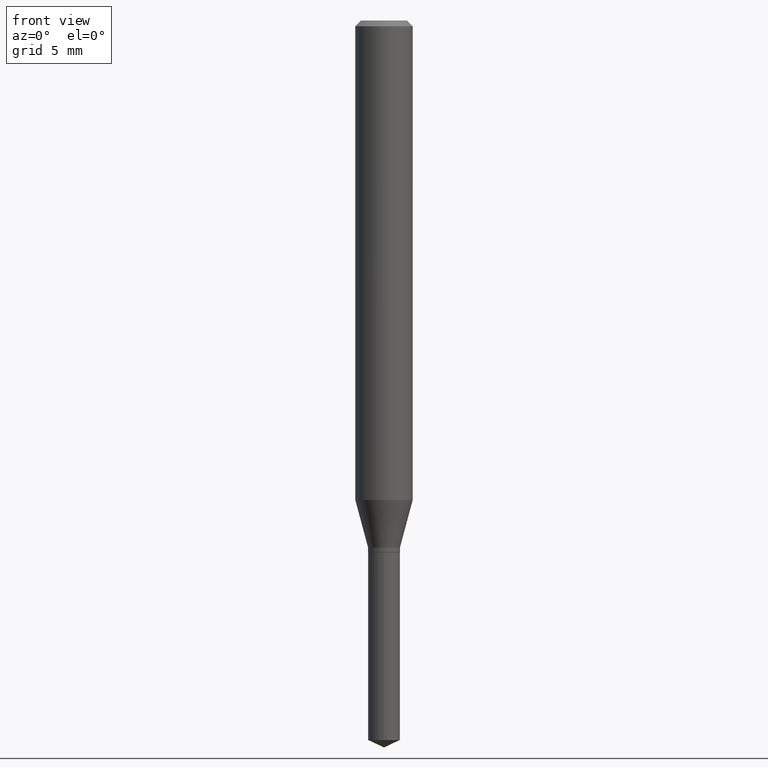
[diagram: clean part render]
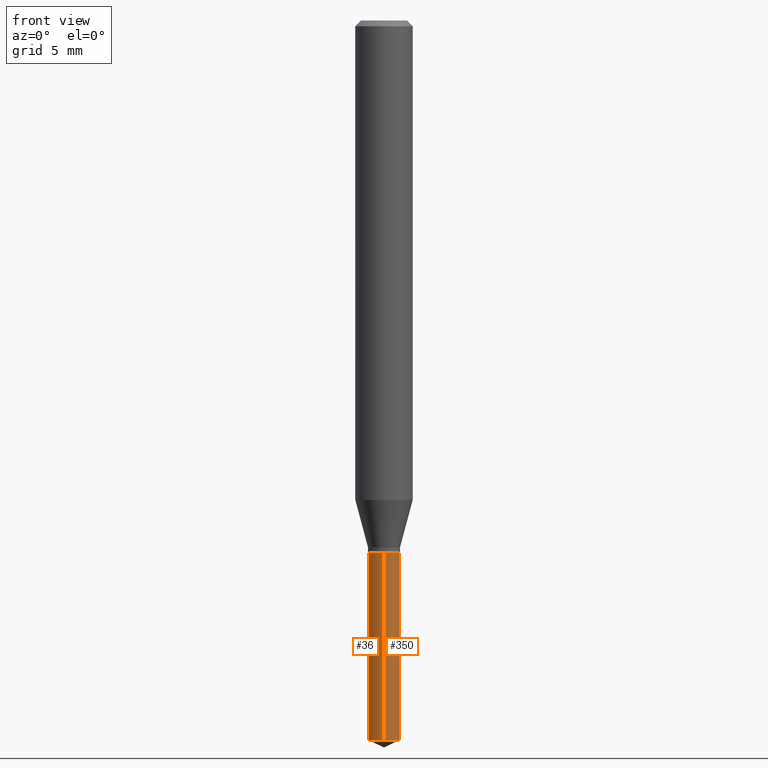
[diagram: same view with one multi-face feature highlighted, each face labeled with its STEP entity id]
A machine part, front view. The highlighted faces form ONE feature: a constant-radius fillet chain: 2 tangent blend faces with common blend radius 0.8344 mm. The faces share edges in the B-rep.
Their STEP definitions:
[1] entity #350 (Cylinder):
#8 = DIRECTION ( 'NONE',  ( -2.445470214571802396E-29, 3.491479321953280158E-15, 1.000000000000000000 ) ) ;
#22 = VERTEX_POINT ( 'NONE', #410 ) ;
#25 = EDGE_CURVE ( 'NONE', #66, #22, #411, .T. ) ;
#37 = ORIENTED_EDGE ( 'NONE', *, *, #444, .F. ) ;
#38 = CARTESIAN_POINT ( 'NONE',  ( 2.334132886972290313E-16, 0.03284999999999482084, -1.480781793429608140 ) ) ;
#52 = FACE_OUTER_BOUND ( 'NONE', #285, .T. ) ;
#57 = LINE ( 'NONE', #391, #339 ) ;
#66 = VERTEX_POINT ( 'NONE', #38 ) ;
#75 = VECTOR ( 'NONE', #490, 39.37007874015748143 ) ;
#95 = ORIENTED_EDGE ( 'NONE', *, *, #252, .F. ) ;
#100 = ORIENTED_EDGE ( 'NONE', *, *, #25, .T. ) ;
#119 = DIRECTION ( 'NONE',  ( -6.982962677686266711E-15, -1.000000000000000000, 0.000000000000000000 ) ) ;
#128 = CARTESIAN_POINT ( 'NONE',  ( -2.293903239619575644E-16, -0.03285000000000516673, -1.480781793429608140 ) ) ;
#133 = AXIS2_PLACEMENT_3D ( 'NONE', #439, #474, #119 ) ;
#141 = DIRECTION ( 'NONE',  ( -6.982962677686266711E-15, -1.000000000000000000, 4.158063917297204420E-15 ) ) ;
#175 = CARTESIAN_POINT ( 'NONE',  ( 2.676565608369631794E-29, -3.821426325363822773E-15, -1.094499999999999806 ) ) ;
#197 = CARTESIAN_POINT ( 'NONE',  ( 2.676565608369631794E-29, -3.821426325363822773E-15, -1.094499999999999806 ) ) ;
#208 = ORIENTED_EDGE ( 'NONE', *, *, #358, .T. ) ;
#231 = DIRECTION ( 'NONE',  ( -2.445470214571802116E-29, 3.491479321953280158E-15, 1.000000000000000000 ) ) ;
#247 = CIRCLE ( 'NONE', #133, 0.03284999999999999726 ) ;
#252 = EDGE_CURVE ( 'NONE', #302, #22, #301, .T. ) ;
#285 = EDGE_LOOP ( 'NONE', ( #208, #100, #95, #37 ) ) ;
#301 = CIRCLE ( 'NONE', #394, 0.03284999999999999726 ) ;
#302 = VERTEX_POINT ( 'NONE', #330 ) ;
#314 = DIRECTION ( 'NONE',  ( -2.445470214571802116E-29, 3.491479321953280158E-15, 1.000000000000000000 ) ) ;
#325 = AXIS2_PLACEMENT_3D ( 'NONE', #197, #314, #432 ) ;
#330 = CARTESIAN_POINT ( 'NONE',  ( -2.293903239619670800E-16, -0.03285000000000382059, -1.094499999999999806 ) ) ;
#339 = VECTOR ( 'NONE', #8, 39.37007874015748143 ) ;
#350 = ADVANCED_FACE ( 'NONE', ( #52 ), #435, .T. ) ;
#358 = EDGE_CURVE ( 'NONE', #371, #66, #247, .T. ) ;
#371 = VERTEX_POINT ( 'NONE', #128 ) ;
#391 = CARTESIAN_POINT ( 'NONE',  ( -2.293903239619670800E-16, -0.03285000000000382059, -1.094499999999999806 ) ) ;
#394 = AXIS2_PLACEMENT_3D ( 'NONE', #175, #231, #141 ) ;
#410 = CARTESIAN_POINT ( 'NONE',  ( 2.334132886972291299E-16, 0.03284999999999617393, -1.094500000000000028 ) ) ;
#411 = LINE ( 'NONE', #488, #75 ) ;
#432 = DIRECTION ( 'NONE',  ( -6.982962677686266711E-15, -1.000000000000000000, 4.158063917297204420E-15 ) ) ;
#435 = CYLINDRICAL_SURFACE ( 'NONE', #325, 0.03284999999999999726 ) ;
#439 = CARTESIAN_POINT ( 'NONE',  ( 3.621206228633116670E-29, -5.170121219570327445E-15, -1.480781793429608140 ) ) ;
#444 = EDGE_CURVE ( 'NONE', #371, #302, #57, .T. ) ;
#474 = DIRECTION ( 'NONE',  ( -2.445470214571802116E-29, 3.491479321953280158E-15, 1.000000000000000000 ) ) ;
#488 = CARTESIAN_POINT ( 'NONE',  ( 2.334132886972196142E-16, 0.03284999999999618087, -1.094500000000000028 ) ) ;
#490 = DIRECTION ( 'NONE',  ( -2.445470214571802396E-29, 3.491479321953280158E-15, 1.000000000000000000 ) ) ;
[2] entity #36 (Cylinder):
#8 = DIRECTION ( 'NONE',  ( -2.445470214571802396E-29, 3.491479321953280158E-15, 1.000000000000000000 ) ) ;
#22 = VERTEX_POINT ( 'NONE', #410 ) ;
#25 = EDGE_CURVE ( 'NONE', #66, #22, #411, .T. ) ;
#30 = AXIS2_PLACEMENT_3D ( 'NONE', #97, #281, #82 ) ;
#36 = ADVANCED_FACE ( 'NONE', ( #415 ), #146, .T. ) ;
#38 = CARTESIAN_POINT ( 'NONE',  ( 2.334132886972290313E-16, 0.03284999999999482084, -1.480781793429608140 ) ) ;
#43 = EDGE_CURVE ( 'NONE', #66, #371, #267, .T. ) ;
#57 = LINE ( 'NONE', #391, #339 ) ;
#66 = VERTEX_POINT ( 'NONE', #38 ) ;
#75 = VECTOR ( 'NONE', #490, 39.37007874015748143 ) ;
#82 = DIRECTION ( 'NONE',  ( -6.982962677686266711E-15, -1.000000000000000000, 4.158063917297204420E-15 ) ) ;
#97 = CARTESIAN_POINT ( 'NONE',  ( 2.676565608369631794E-29, -3.821426325363822773E-15, -1.094499999999999806 ) ) ;
#109 = DIRECTION ( 'NONE',  ( -6.982962677686266711E-15, -1.000000000000000000, 4.158063917297204420E-15 ) ) ;
#111 = ORIENTED_EDGE ( 'NONE', *, *, #43, .T. ) ;
#126 = CIRCLE ( 'NONE', #30, 0.03284999999999999726 ) ;
#128 = CARTESIAN_POINT ( 'NONE',  ( -2.293903239619575644E-16, -0.03285000000000516673, -1.480781793429608140 ) ) ;
#146 = CYLINDRICAL_SURFACE ( 'NONE', #209, 0.03284999999999999726 ) ;
#147 = ORIENTED_EDGE ( 'NONE', *, *, #365, .F. ) ;
#199 = DIRECTION ( 'NONE',  ( -2.445470214571802116E-29, 3.491479321953280158E-15, 1.000000000000000000 ) ) ;
#207 = EDGE_LOOP ( 'NONE', ( #485, #111, #489, #147 ) ) ;
#209 = AXIS2_PLACEMENT_3D ( 'NONE', #296, #456, #109 ) ;
#267 = CIRCLE ( 'NONE', #405, 0.03284999999999999726 ) ;
#281 = DIRECTION ( 'NONE',  ( -2.445470214571802116E-29, 3.491479321953280158E-15, 1.000000000000000000 ) ) ;
#296 = CARTESIAN_POINT ( 'NONE',  ( 2.676565608369631794E-29, -3.821426325363822773E-15, -1.094499999999999806 ) ) ;
#302 = VERTEX_POINT ( 'NONE', #330 ) ;
#330 = CARTESIAN_POINT ( 'NONE',  ( -2.293903239619670800E-16, -0.03285000000000382059, -1.094499999999999806 ) ) ;
#339 = VECTOR ( 'NONE', #8, 39.37007874015748143 ) ;
#352 = DIRECTION ( 'NONE',  ( -6.982962677686266711E-15, -1.000000000000000000, 0.000000000000000000 ) ) ;
#365 = EDGE_CURVE ( 'NONE', #22, #302, #126, .T. ) ;
#371 = VERTEX_POINT ( 'NONE', #128 ) ;
#391 = CARTESIAN_POINT ( 'NONE',  ( -2.293903239619670800E-16, -0.03285000000000382059, -1.094499999999999806 ) ) ;
#405 = AXIS2_PLACEMENT_3D ( 'NONE', #458, #199, #352 ) ;
#410 = CARTESIAN_POINT ( 'NONE',  ( 2.334132886972291299E-16, 0.03284999999999617393, -1.094500000000000028 ) ) ;
#411 = LINE ( 'NONE', #488, #75 ) ;
#415 = FACE_OUTER_BOUND ( 'NONE', #207, .T. ) ;
#444 = EDGE_CURVE ( 'NONE', #371, #302, #57, .T. ) ;
#456 = DIRECTION ( 'NONE',  ( -2.445470214571802116E-29, 3.491479321953280158E-15, 1.000000000000000000 ) ) ;
#458 = CARTESIAN_POINT ( 'NONE',  ( 3.621206228633116670E-29, -5.170121219570327445E-15, -1.480781793429608140 ) ) ;
#485 = ORIENTED_EDGE ( 'NONE', *, *, #25, .F. ) ;
#488 = CARTESIAN_POINT ( 'NONE',  ( 2.334132886972196142E-16, 0.03284999999999618087, -1.094500000000000028 ) ) ;
#489 = ORIENTED_EDGE ( 'NONE', *, *, #444, .T. ) ;
#490 = DIRECTION ( 'NONE',  ( -2.445470214571802396E-29, 3.491479321953280158E-15, 1.000000000000000000 ) ) ;